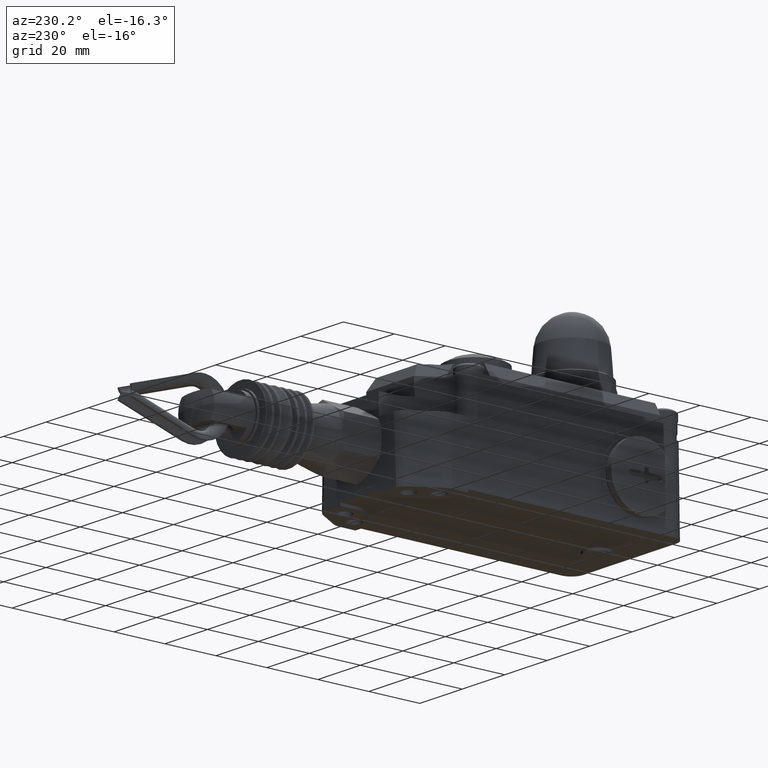
[diagram: clean part render]
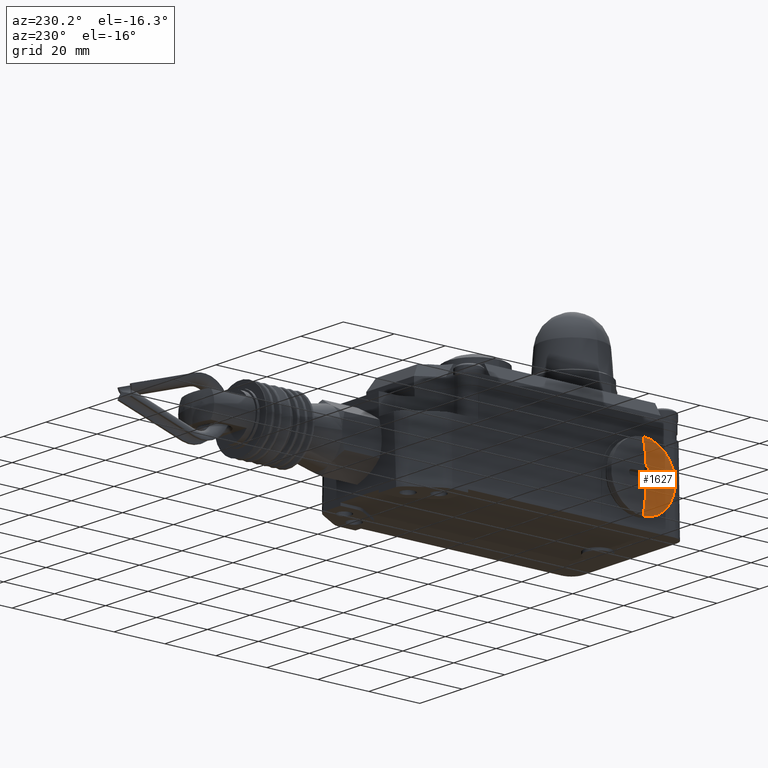
[diagram: same view with one face highlighted and labeled with its STEP entity id]
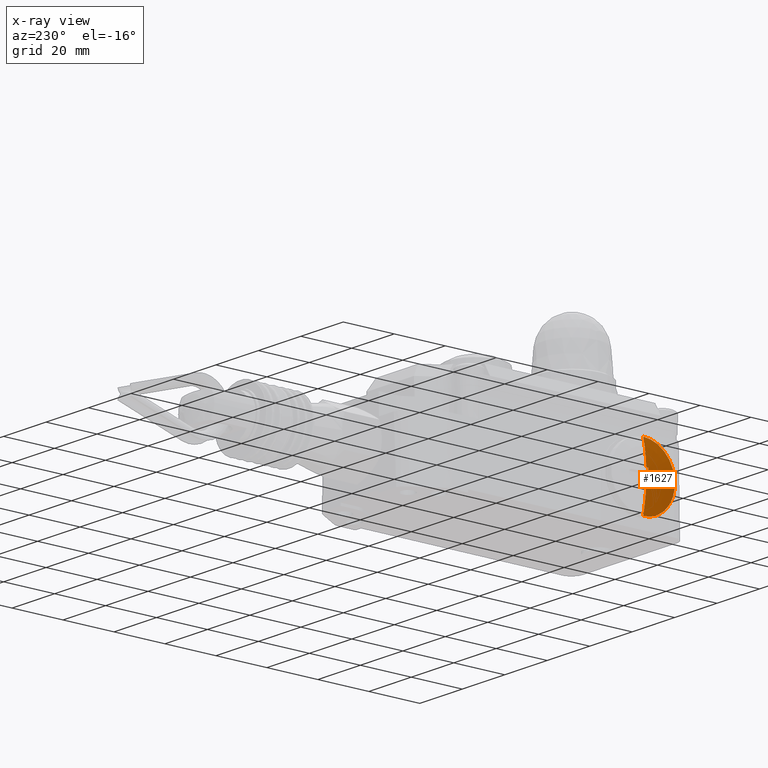
[diagram: x-ray of the same camera — body ghosted, the highlighted face saturated]
A machine part, auxiliary view. The second image highlights one B-rep face of the part: STEP entity #1627.
The next image is the same camera in x-ray: the body ghosted, the highlighted face saturated — about 0% of this face is hidden behind the body in this view.
In plain terms, the highlighted toroidal blend (fillet) surface has major radius 0.0259 mm and minor (blend) radius 50.5256 mm.
Its self-contained STEP definition (entity closure, byte-faithful):
#1627=ADVANCED_FACE('',(#3351),#3352,.T.);
#3351=FACE_OUTER_BOUND('',#5161,.T.);
#3352=TOROIDAL_SURFACE('',#5162,-0.0259108420998881,50.525632715699);
#5161=EDGE_LOOP('',(#9835,#9836,#9837,#9838,#9839,#9840,#9841,#9842,#9843,#9844,#9845,#9846,#9847,#9848,#9849,#9850));
#5162=AXIS2_PLACEMENT_3D('',#9851,#9852,#9853);
#9835=ORIENTED_EDGE('',*,*,#10962,.T.);
#9836=ORIENTED_EDGE('',*,*,#12373,.T.);
#9837=ORIENTED_EDGE('',*,*,#12375,.T.);
#9838=ORIENTED_EDGE('',*,*,#12379,.T.);
#9839=ORIENTED_EDGE('',*,*,#12383,.T.);
#9840=ORIENTED_EDGE('',*,*,#12387,.T.);
#9841=ORIENTED_EDGE('',*,*,#12391,.T.);
#9842=ORIENTED_EDGE('',*,*,#12395,.T.);
#9843=ORIENTED_EDGE('',*,*,#12399,.T.);
#9844=ORIENTED_EDGE('',*,*,#12403,.T.);
#9845=ORIENTED_EDGE('',*,*,#12407,.T.);
#9846=ORIENTED_EDGE('',*,*,#12411,.T.);
#9847=ORIENTED_EDGE('',*,*,#12415,.T.);
#9848=ORIENTED_EDGE('',*,*,#12419,.T.);
#9849=ORIENTED_EDGE('',*,*,#10964,.T.);
#9850=ORIENTED_EDGE('',*,*,#12434,.T.);
#9851=CARTESIAN_POINT('',(50.5053895282991,21.04,16.5));
#9852=DIRECTION('',(-1.0,0.0,0.0));
#9853=DIRECTION('',(0.0,0.0,1.0));
#10962=EDGE_CURVE('',#13139,#13140,#13141,.T.);
#10964=EDGE_CURVE('',#13144,#13142,#13145,.T.);
#12373=EDGE_CURVE('',#13140,#15191,#15193,.T.);
#12375=EDGE_CURVE('',#15191,#15195,#15196,.T.);
#12379=EDGE_CURVE('',#15195,#15201,#15202,.T.);
#12383=EDGE_CURVE('',#15201,#15207,#15208,.T.);
#12387=EDGE_CURVE('',#15207,#15213,#15214,.T.);
#12391=EDGE_CURVE('',#15213,#15219,#15220,.T.);
#12395=EDGE_CURVE('',#15219,#15225,#15226,.T.);
#12399=EDGE_CURVE('',#15225,#15231,#15232,.T.);
#12403=EDGE_CURVE('',#15231,#15237,#15238,.T.);
#12407=EDGE_CURVE('',#15237,#15243,#15244,.T.);
#12411=EDGE_CURVE('',#15243,#15249,#15250,.T.);
#12415=EDGE_CURVE('',#15249,#15255,#15256,.T.);
#12419=EDGE_CURVE('',#15255,#13144,#15261,.T.);
#12434=EDGE_CURVE('',#13142,#13139,#15279,.T.);
#13139=VERTEX_POINT('',#16250);
#13140=VERTEX_POINT('',#16251);
#13141=CIRCLE('',#16252,50.525632715699);
#13142=VERTEX_POINT('',#16253);
#13144=VERTEX_POINT('',#16255);
#13145=CIRCLE('',#16256,50.525632715699);
#15191=VERTEX_POINT('',#19368);
#15193=B_SPLINE_CURVE_WITH_KNOTS('',3,(#19371,#19372,#19373,#19374),.UNSPECIFIED.,.F.,.F.,(4,4),(149.427847892274,150.123642122216),.UNSPECIFIED.);
#15195=VERTEX_POINT('',#19376);
#15196=B_SPLINE_CURVE_WITH_KNOTS('',3,(#19377,#19378,#19379,#19380,#19381,#19382,#19383,#19384,#19385,#19386,#19387,#19388,#19389,#19390),.UNSPECIFIED.,.F.,.F.,(4,2,2,2,2,2,4),(-0.157466151315368,-0.128015963468189,-0.0984842948378138,-0.0630348874944077,-0.0304089724650827,-0.00190344631499732,1.1087331975706E-012),.UNSPECIFIED.);
#15201=VERTEX_POINT('',#19396);
#15202=B_SPLINE_CURVE_WITH_KNOTS('',3,(#19397,#19398,#19399,#19400),.UNSPECIFIED.,.F.,.F.,(4,4),(147.23414869565,148.301661006604),.UNSPECIFIED.);
#15207=VERTEX_POINT('',#19407);
#15208=B_SPLINE_CURVE_WITH_KNOTS('',3,(#19408,#19409,#19410,#19411,#19412,#19413,#19414,#19415,#19416,#19417,#19418,#19419,#19420,#19421),.UNSPECIFIED.,.F.,.F.,(4,2,2,2,2,2,4),(-0.472246517391618,-0.391869418510966,-0.33108914760465,-0.228508152731929,-0.118247399637018,-0.0190378395960355,1.98903365015838E-013),.UNSPECIFIED.);
#15213=VERTEX_POINT('',#19427);
#15214=B_SPLINE_CURVE_WITH_KNOTS('',3,(#19428,#19429,#19430,#19431,#19432,#19433),.UNSPECIFIED.,.F.,.F.,(4,2,4),(150.665908785402,154.422390257034,154.91972924914),.UNSPECIFIED.);
#15219=VERTEX_POINT('',#19440);
#15220=B_SPLINE_CURVE_WITH_KNOTS('',3,(#19441,#19442,#19443,#19444,#19445,#19446,#19447,#19448,#19449,#19450,#19451,#19452),.UNSPECIFIED.,.F.,.F.,(4,2,2,2,2,4),(-1.50041911411101,-1.12941517835173,-0.902203556487165,-0.544054892542035,-0.168379874424781,-1.9940182770121E-016),.UNSPECIFIED.);
#15225=VERTEX_POINT('',#19458);
#15226=B_SPLINE_CURVE_WITH_KNOTS('',3,(#19459,#19460,#19461,#19462,#19463,#19464),.UNSPECIFIED.,.F.,.F.,(4,2,4),(148.347243708621,148.39722390963,148.447204110646),.UNSPECIFIED.);
#15231=VERTEX_POINT('',#19471);
#15232=B_SPLINE_CURVE_WITH_KNOTS('',3,(#19472,#19473,#19474,#19475,#19476,#19477,#19478,#19479,#19480,#19481,#19482,#19483,#19484,#19485),.UNSPECIFIED.,.F.,.F.,(4,2,2,2,2,2,4),(-1.49954129403462,-1.29373502223727,-1.08193881109372,-0.741214194257886,-0.423514013504968,-0.144367382391451,0.0),.UNSPECIFIED.);
#15237=VERTEX_POINT('',#19491);
#15238=B_SPLINE_CURVE_WITH_KNOTS('',3,(#19492,#19493,#19494,#19495,#19496,#19497),.UNSPECIFIED.,.F.,.F.,(4,2,4),(144.233487819901,144.730826812,148.487308283609),.UNSPECIFIED.);
#15243=VERTEX_POINT('',#19504);
#15244=B_SPLINE_CURVE_WITH_KNOTS('',3,(#19505,#19506,#19507,#19508,#19509,#19510,#19511,#19512,#19513,#19514,#19515,#19516,#19517,#19518),.UNSPECIFIED.,.F.,.F.,(4,2,2,2,2,2,4),(-0.472263496421618,-0.395899873365003,-0.333046230182539,-0.216672180196811,-0.112704204323186,-0.0191934447020002,-1.99771914656015E-013),.UNSPECIFIED.);
#15249=VERTEX_POINT('',#19524);
#15250=B_SPLINE_CURVE_WITH_KNOTS('',3,(#19525,#19526,#19527,#19528),.UNSPECIFIED.,.F.,.F.,(4,4),(150.871913873027,151.939426184048),.UNSPECIFIED.);
#15255=VERTEX_POINT('',#19535);
#15256=B_SPLINE_CURVE_WITH_KNOTS('',3,(#19536,#19537,#19538,#19539,#19540,#19541,#19542,#19543,#19544,#19545,#19546,#19547,#19548,#19549),.UNSPECIFIED.,.F.,.F.,(4,2,2,2,2,2,4),(-0.157505638960012,-0.129901436021784,-0.110580050597242,-0.0797203432489571,-0.0401137879315467,-0.00200113430733025,0.0),.UNSPECIFIED.);
#15261=B_SPLINE_CURVE_WITH_KNOTS('',3,(#19555,#19556,#19557,#19558),.UNSPECIFIED.,.F.,.F.,(4,4),(148.732053662295,149.427847892274),.UNSPECIFIED.);
#15279=CIRCLE('',#19581,12.4999999999711);
#16250=CARTESIAN_POINT('',(1.5570379840621,21.04,28.9999999999711));
#16251=CARTESIAN_POINT('',(0.0429348145272002,21.04,19.0));
#16252=AXIS2_PLACEMENT_3D('',#20602,#20603,#20604);
#16253=CARTESIAN_POINT('',(1.5570379840621,21.04,4.0000000000289));
#16255=CARTESIAN_POINT('',(0.0429348145272002,21.04,14.0));
#16256=AXIS2_PLACEMENT_3D('',#20608,#20609,#20610);
#19368=CARTESIAN_POINT('',(0.0478395180888,20.34,19.0));
#19371=CARTESIAN_POINT('',(0.0429348145272002,21.04,19.0));
#19372=CARTESIAN_POINT('',(0.0429348145272037,20.8080685900193,19.0));
#19373=CARTESIAN_POINT('',(0.0445758115534893,20.5746923420397,19.0));
#19374=CARTESIAN_POINT('',(0.0478944321980812,20.3400007765088,19.0));
#19376=CARTESIAN_POINT('',(0.0444364030678983,20.24,18.8999999999591));
#19377=CARTESIAN_POINT('',(0.0478395180888,20.34,19.0000000000001));
#19378=CARTESIAN_POINT('',(0.0479770474741983,20.3301845340179,18.9999999982136));
#19379=CARTESIAN_POINT('',(0.0480444117752974,20.3204218627263,18.9985548460941));
#19380=CARTESIAN_POINT('',(0.0480344206742984,20.3016051701638,18.992858664993));
#19381=CARTESIAN_POINT('',(0.0479567194598971,20.2926569008153,18.9886312817218));
#19382=CARTESIAN_POINT('',(0.0476313643208002,20.2746454482372,18.9766052873382));
#19383=CARTESIAN_POINT('',(0.0473553557804998,20.2660613554535,18.9683561883098));
#19384=CARTESIAN_POINT('',(0.046660910409198,20.2527243453514,18.950011158835));
#19385=CARTESIAN_POINT('',(0.0462602089021971,20.247809817765,18.9402372332973));
#19386=CARTESIAN_POINT('',(0.0454119059040998,20.2417290066502,18.9208071763734));
#19387=CARTESIAN_POINT('',(0.0449809136779997,20.2401985124563,18.9113904382607));
#19388=CARTESIAN_POINT('',(0.0444972198321985,20.2400060248332,18.9012674917128));
#19389=CARTESIAN_POINT('',(0.044466853950798,20.2400000001149,18.9006337509244));
#19390=CARTESIAN_POINT('',(0.0444364030679978,20.2399999999998,18.8999999999597));
#19396=CARTESIAN_POINT('',(0.00360948459909949,20.24,17.7999999999503));
#19397=CARTESIAN_POINT('',(0.0445175409033567,20.24,18.8999960979997));
#19398=CARTESIAN_POINT('',(0.0267560891512204,20.24,18.5306622295155));
#19399=CARTESIAN_POINT('',(0.0131695217780106,20.24,18.1638259945819));
#19400=CARTESIAN_POINT('',(0.00362602805164869,20.24,17.799999566028));
#19407=CARTESIAN_POINT('',(0.00240098823239876,19.9400000000497,17.5));
#19408=CARTESIAN_POINT('',(0.00360948459909949,20.24,17.7999999999503));
#19409=CARTESIAN_POINT('',(0.0029083372456995,20.2400000000134,17.773216800251));
#19410=CARTESIAN_POINT('',(0.0022894826312978,20.2364133010293,17.7465517846133));
#19411=CARTESIAN_POINT('',(0.00137652714379755,20.2239807948718,17.7011808587999));
#19412=CARTESIAN_POINT('',(0.00104238439509885,20.2166623829856,17.6822361639531));
#19413=CARTESIAN_POINT('',(0.000316760543999095,20.1920104103653,17.6336878140563));
#19414=CARTESIAN_POINT('',(4.92343597997547E-005,20.1714315583819,17.6060705786762));
#19415=CARTESIAN_POINT('',(-9.09995023015142E-005,20.119999453871,17.5572017310753));
#19416=CARTESIAN_POINT('',(6.85503381987473E-005,20.0889294340475,17.5369967874581));
#19417=CARTESIAN_POINT('',(0.000797328977999001,20.024442141155,17.5102362848911));
#19418=CARTESIAN_POINT('',(0.00131886544529891,19.9920155748395,17.5026995837028));
#19419=CARTESIAN_POINT('',(0.00212509116819959,19.9526872964875,17.5002012563461));
#19420=CARTESIAN_POINT('',(0.00226039327759864,19.9463443889444,17.4999999999968));
#19421=CARTESIAN_POINT('',(0.00240098823239876,19.9400000000498,17.4999999999999));
#19427=CARTESIAN_POINT('',(0.298376589157098,15.49,17.5));
#19428=CARTESIAN_POINT('',(0.00243562657108143,19.9400007696326,17.5));
#19429=CARTESIAN_POINT('',(0.0307884574976427,18.6638614800117,17.5));
#19430=CARTESIAN_POINT('',(0.108864826446588,17.3495750070395,17.5));
#19431=CARTESIAN_POINT('',(0.260112425524262,15.8430675944064,17.5));
#19432=CARTESIAN_POINT('',(0.278773229110442,15.6666515435572,17.5));
#19433=CARTESIAN_POINT('',(0.298409984758571,15.4900037123652,17.5));
#19440=CARTESIAN_POINT('',(0.4029989761795,14.54,16.5499999999929));
#19441=CARTESIAN_POINT('',(0.298376589157098,15.49,17.5));
#19442=CARTESIAN_POINT('',(0.3120289436342,15.3670614453969,17.4999999999871));
#19443=CARTESIAN_POINT('',(0.325538154503299,15.2452302789496,17.47613596584));
#19444=CARTESIAN_POINT('',(0.345875467474297,15.061516431882,17.4012228261147));
#19445=CARTESIAN_POINT('',(0.353194032007298,14.9953291837984,17.3645508276931));
#19446=CARTESIAN_POINT('',(0.370599410710497,14.8377019078434,17.2508213060044));
#19447=CARTESIAN_POINT('',(0.3796983230115,14.7550726353507,17.1636661550332));
#19448=CARTESIAN_POINT('',(0.394165388165899,14.6231073221707,16.9581981044616));
#19449=CARTESIAN_POINT('',(0.399184159237599,14.5769202111887,16.8406221275202));
#19450=CARTESIAN_POINT('',(0.402558144401699,14.5449739811506,16.6621380436653));
#19451=CARTESIAN_POINT('',(0.403055211346299,14.5400000000055,16.6061265966291));
#19452=CARTESIAN_POINT('',(0.4029989761795,14.54,16.5499999999929));
#19458=CARTESIAN_POINT('',(0.4029989761795,14.54,16.45));
#19459=CARTESIAN_POINT('',(0.402999381921273,14.54,16.5499999995798));
#19460=CARTESIAN_POINT('',(0.402982408351562,14.54,16.5333267471854));
#19461=CARTESIAN_POINT('',(0.402973927824398,14.54,16.516660067003));
#19462=CARTESIAN_POINT('',(0.402973927824394,14.54,16.4833399329946));
#19463=CARTESIAN_POINT('',(0.402982408351555,14.54,16.4666732528099));
#19464=CARTESIAN_POINT('',(0.402999381921269,14.54,16.450000000413));
#19471=CARTESIAN_POINT('',(0.298376589156298,15.4900000000072,15.5));
#19472=CARTESIAN_POINT('',(0.4029989761795,14.54,16.45));
#19473=CARTESIAN_POINT('',(0.4030676993928,14.5400000000072,16.3814094668356));
#19474=CARTESIAN_POINT('',(0.402310051766598,14.5474283773812,16.3130293127437));
#19475=CARTESIAN_POINT('',(0.399124260204399,14.5772990779527,16.1771319776854));
#19476=CARTESIAN_POINT('',(0.396658498963699,14.6000749714167,16.110139120849));
#19477=CARTESIAN_POINT('',(0.3881333383335,14.6782412505013,15.9436252479264));
#19478=CARTESIAN_POINT('',(0.380870830927698,14.7443966912929,15.8505057083969));
#19479=CARTESIAN_POINT('',(0.363648949515998,14.9007003999249,15.6974244878748));
#19480=CARTESIAN_POINT('',(0.354025465726497,14.9878322667422,15.6367160079282));
#19481=CARTESIAN_POINT('',(0.334234259754098,15.1667068354977,15.55191675611));
#19482=CARTESIAN_POINT('',(0.3243775234737,15.2556740373398,15.5247181281281));
#19483=CARTESIAN_POINT('',(0.308989063408898,15.3944077086333,15.503611937935));
#19484=CARTESIAN_POINT('',(0.303687949481699,15.4421715494294,15.5000000000047));
#19485=CARTESIAN_POINT('',(0.298376589156298,15.4900000000072,15.5));
#19491=CARTESIAN_POINT('',(0.0024009882335001,19.94,15.5));
#19492=CARTESIAN_POINT('',(0.298409984757775,15.4900037123724,15.5));
#19493=CARTESIAN_POINT('',(0.278773229109937,15.666651543562,15.5));
#19494=CARTESIAN_POINT('',(0.260112425524024,15.8430675944088,15.5));
#19495=CARTESIAN_POINT('',(0.108864826447402,17.3495750070314,15.5));
#19496=CARTESIAN_POINT('',(0.0307884574985984,18.6638614799957,15.5));
#19497=CARTESIAN_POINT('',(0.00243562657161078,19.9400007696093,15.5));
#19504=CARTESIAN_POINT('',(0.00360948459909949,20.24,15.2000000000497));
#19505=CARTESIAN_POINT('',(0.0024009882335001,19.9399999999999,15.5));
#19506=CARTESIAN_POINT('',(0.00183704326669698,19.9654481833101,15.5000000000169));
#19507=CARTESIAN_POINT('',(0.00135997535019783,19.9907949484159,15.4967619498653));
#19508=CARTESIAN_POINT('',(0.000669916114997449,20.0357046771697,15.4850955369809));
#19509=CARTESIAN_POINT('',(0.000427039051597689,20.0553738891816,15.4777188920304));
#19510=CARTESIAN_POINT('',(-5.81491748015139E-005,20.1088120425299,15.4510122304948));
#19511=CARTESIAN_POINT('',(-0.00011925167290272,20.1398199111699,15.4271050578768));
#19512=CARTESIAN_POINT('',(0.000252415155397756,20.1882839176062,15.3719188252243));
#19513=CARTESIAN_POINT('',(0.00063040535199832,20.206466177666,15.3421143379236));
#19514=CARTESIAN_POINT('',(0.00170070018619839,20.2305707688476,15.2808699382253));
#19515=CARTESIAN_POINT('',(0.00235102498549722,20.2373952983144,15.250269553141));
#19516=CARTESIAN_POINT('',(0.00327918323629817,20.2397954799901,15.2127897309737));
#19517=CARTESIAN_POINT('',(0.0034420559603987,20.2400000000032,15.2063956237998));
#19518=CARTESIAN_POINT('',(0.00360948459909949,20.2399999999999,15.2000000000496));
#19524=CARTESIAN_POINT('',(0.0444364030698985,20.24,14.1));
#19525=CARTESIAN_POINT('',(0.00362602805093815,20.24,15.2000004339993));
#19526=CARTESIAN_POINT('',(0.0131695217776837,20.24,14.8361740054231));
#19527=CARTESIAN_POINT('',(0.0267560891517817,20.24,14.4693377704667));
#19528=CARTESIAN_POINT('',(0.044517540905332,20.24,14.1000039019594));
#19535=CARTESIAN_POINT('',(0.0478395180892974,20.3399999999626,14.0000000000001));
#19536=CARTESIAN_POINT('',(0.0444364030698985,20.2399999999999,14.0999999999996));
#19537=CARTESIAN_POINT('',(0.0448780206287971,20.2399999905883,14.0908089547648));
#19538=CARTESIAN_POINT('',(0.0452998169319976,20.2412671122026,14.0816604888914));
#19539=CARTESIAN_POINT('',(0.0459628543518988,20.2455158572997,14.0666209752779));
#19540=CARTESIAN_POINT('',(0.0462187570268995,20.2478590907215,14.0606111043805));
#19541=CARTESIAN_POINT('',(0.0468296929582976,20.2554034969292,14.0456942356872));
#19542=CARTESIAN_POINT('',(0.0471490257006977,20.2614307931491,14.0372892328685));
#19543=CARTESIAN_POINT('',(0.0477236097801992,20.2778798189194,14.0205312122427));
#19544=CARTESIAN_POINT('',(0.0479293667644001,20.2889004154336,14.0130337357975));
#19545=CARTESIAN_POINT('',(0.0480796402214985,20.3127615681236,14.0029460787718));
#19546=CARTESIAN_POINT('',(0.0480323356933994,20.3252986053372,14.0002741677019));
#19547=CARTESIAN_POINT('',(0.0478578881847973,20.3386660537012,14.0000066715622));
#19548=CARTESIAN_POINT('',(0.0478488635089001,20.3393330206622,13.9999999993173));
#19549=CARTESIAN_POINT('',(0.0478395180892974,20.3399999999626,14.0));
#19555=CARTESIAN_POINT('',(0.047894432198607,20.3400007764714,14.0));
#19556=CARTESIAN_POINT('',(0.0445758115536563,20.5746923420149,14.0));
#19557=CARTESIAN_POINT('',(0.0429348145272002,20.808068590007,14.0));
#19558=CARTESIAN_POINT('',(0.0429348145272002,21.04,14.0));
#19581=AXIS2_PLACEMENT_3D('',#22451,#22452,#22453);
#20602=CARTESIAN_POINT('',(50.5053895282991,21.04,16.4740891579001));
#20603=DIRECTION('',(0.0,-1.0,0.0));
#20604=DIRECTION('',(0.0,0.0,1.0));
#20608=CARTESIAN_POINT('',(50.5053895282991,21.04,16.5259108420999));
#20609=DIRECTION('',(0.0,-1.0,0.0));
#20610=DIRECTION('',(0.0,0.0,-1.0));
#22451=CARTESIAN_POINT('',(1.5570379840621,21.04,16.5));
#22452=DIRECTION('',(-1.0,0.0,0.0));
#22453=DIRECTION('',(0.0,0.0,1.0));